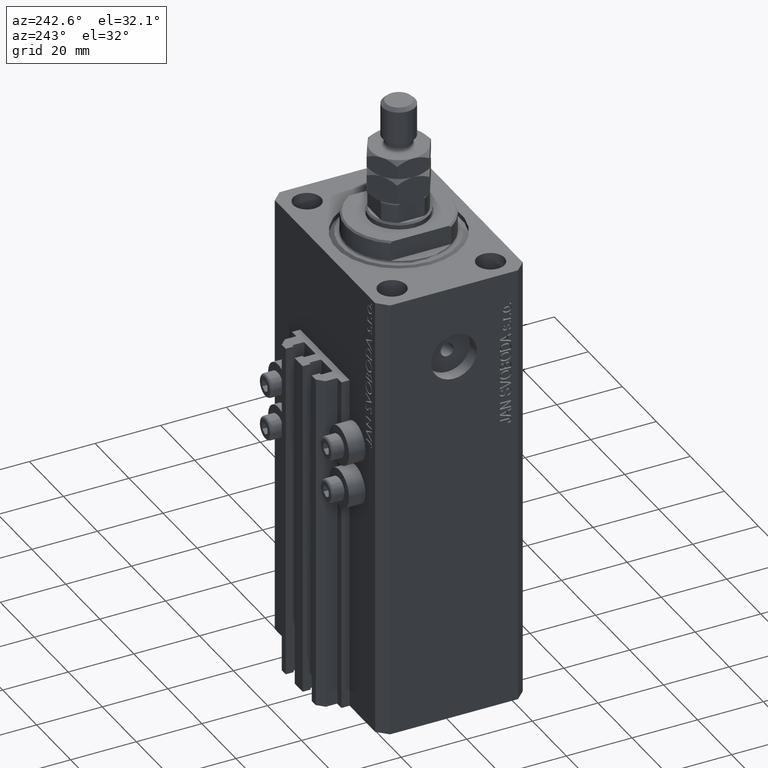
[diagram: clean part render]
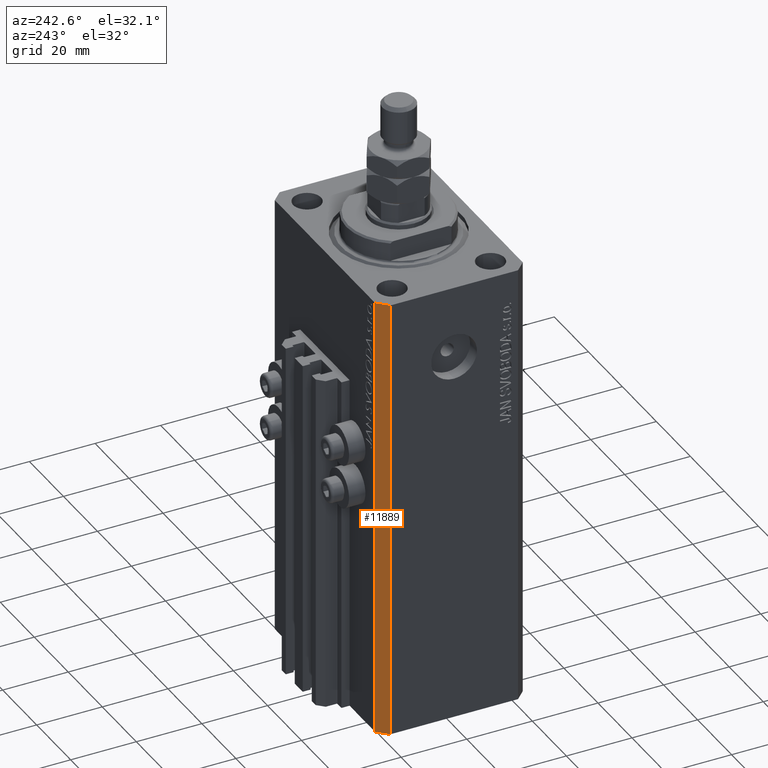
[diagram: same view with one face highlighted and labeled with its STEP entity id]
A machine part, auxiliary view. The second image highlights one B-rep face of the part: STEP entity #11889.
In plain terms, the highlighted planar face has unit normal (-0.7071, 0.7071, 0).
Its self-contained STEP definition (entity closure, byte-faithful):
#792 = CARTESIAN_POINT ( 'NONE',  ( -29.49999999999650413, 22.49999999999949907, 0.000000000000000000 ) ) ;
#1269 = CARTESIAN_POINT ( 'NONE',  ( -29.49999999999650413, 22.49999999999949907, 0.000000000000000000 ) ) ;
#1363 = CARTESIAN_POINT ( 'NONE',  ( -29.49999999999650413, 22.49999999999949907, -137.0000000000000000 ) ) ;
#1437 = ORIENTED_EDGE ( 'NONE', *, *, #10749, .T. ) ;
#2289 = CARTESIAN_POINT ( 'NONE',  ( -29.49999999999650413, 22.49999999999949907, -137.0000000000000000 ) ) ;
#3318 = VECTOR ( 'NONE', #43297, 1000.000000000000114 ) ;
#5989 = LINE ( 'NONE', #16869, #3318 ) ;
#6058 = DIRECTION ( 'NONE',  ( -0.7071067811865474617, -0.7071067811865474617, 0.000000000000000000 ) ) ;
#7581 = EDGE_CURVE ( 'NONE', #42318, #8067, #27478, .T. ) ;
#8067 = VERTEX_POINT ( 'NONE', #32342 ) ;
#10749 = EDGE_CURVE ( 'NONE', #32532, #27106, #5989, .T. ) ;
#11889 = ADVANCED_FACE ( 'NONE', ( #43374 ), #35235, .T. ) ;
#14269 = CARTESIAN_POINT ( 'NONE',  ( -32.49999999999650413, 19.49999999999949907, -137.0000000000000000 ) ) ;
#14341 = VECTOR ( 'NONE', #35180, 1000.000000000000000 ) ;
#16864 = CARTESIAN_POINT ( 'NONE',  ( -32.49999999999650413, 19.49999999999949907, -137.0000000000000000 ) ) ;
#16869 = CARTESIAN_POINT ( 'NONE',  ( -29.49999999999650413, 22.49999999999949907, -137.0000000000000000 ) ) ;
#19303 = CARTESIAN_POINT ( 'NONE',  ( -29.49999999999650413, 22.49999999999949907, -137.0000000000000000 ) ) ;
#22912 = ORIENTED_EDGE ( 'NONE', *, *, #25815, .T. ) ;
#23703 = VECTOR ( 'NONE', #38848, 1000.000000000000114 ) ;
#25815 = EDGE_CURVE ( 'NONE', #27106, #8067, #44038, .T. ) ;
#27106 = VERTEX_POINT ( 'NONE', #14269 ) ;
#27478 = LINE ( 'NONE', #1269, #23703 ) ;
#28027 = ORIENTED_EDGE ( 'NONE', *, *, #7581, .F. ) ;
#31447 = VECTOR ( 'NONE', #43292, 1000.000000000000000 ) ;
#32342 = CARTESIAN_POINT ( 'NONE',  ( -32.49999999999650413, 19.49999999999949907, 0.000000000000000000 ) ) ;
#32532 = VERTEX_POINT ( 'NONE', #19303 ) ;
#34346 = ORIENTED_EDGE ( 'NONE', *, *, #36821, .F. ) ;
#35180 = DIRECTION ( 'NONE',  ( 0.000000000000000000, 0.000000000000000000, 1.000000000000000000 ) ) ;
#35235 = PLANE ( 'NONE',  #42856 ) ;
#36158 = LINE ( 'NONE', #2289, #14341 ) ;
#36821 = EDGE_CURVE ( 'NONE', #32532, #42318, #36158, .T. ) ;
#38848 = DIRECTION ( 'NONE',  ( -0.7071067811865474617, -0.7071067811865474617, 0.000000000000000000 ) ) ;
#40974 = EDGE_LOOP ( 'NONE', ( #28027, #34346, #1437, #22912 ) ) ;
#42318 = VERTEX_POINT ( 'NONE', #792 ) ;
#42856 = AXIS2_PLACEMENT_3D ( 'NONE', #1363, #47093, #6058 ) ;
#43292 = DIRECTION ( 'NONE',  ( 0.000000000000000000, 0.000000000000000000, 1.000000000000000000 ) ) ;
#43297 = DIRECTION ( 'NONE',  ( -0.7071067811865474617, -0.7071067811865474617, 0.000000000000000000 ) ) ;
#43374 = FACE_OUTER_BOUND ( 'NONE', #40974, .T. ) ;
#44038 = LINE ( 'NONE', #16864, #31447 ) ;
#47093 = DIRECTION ( 'NONE',  ( -0.7071067811865475727, 0.7071067811865475727, 0.000000000000000000 ) ) ;